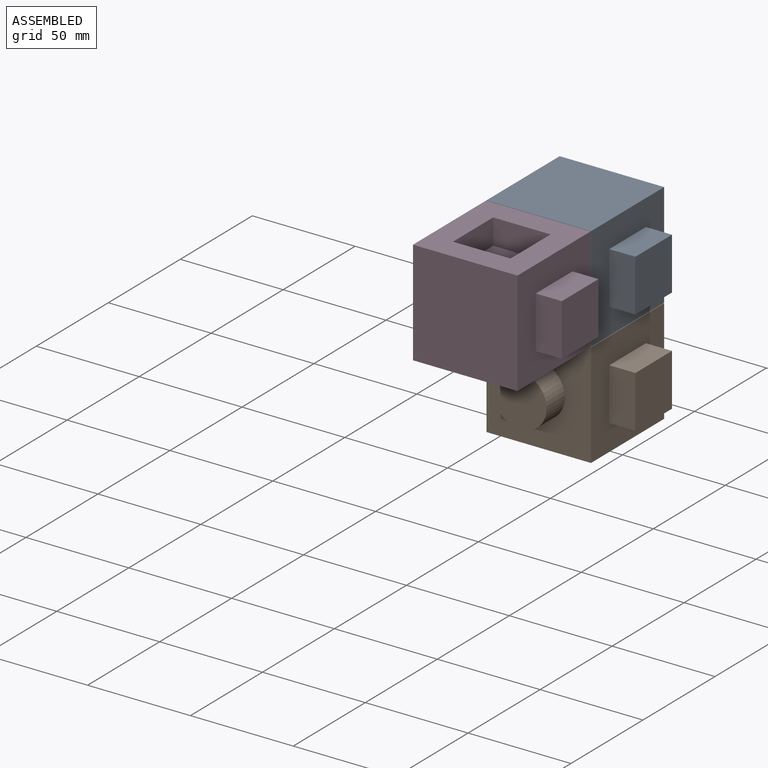
[diagram: assembled view]
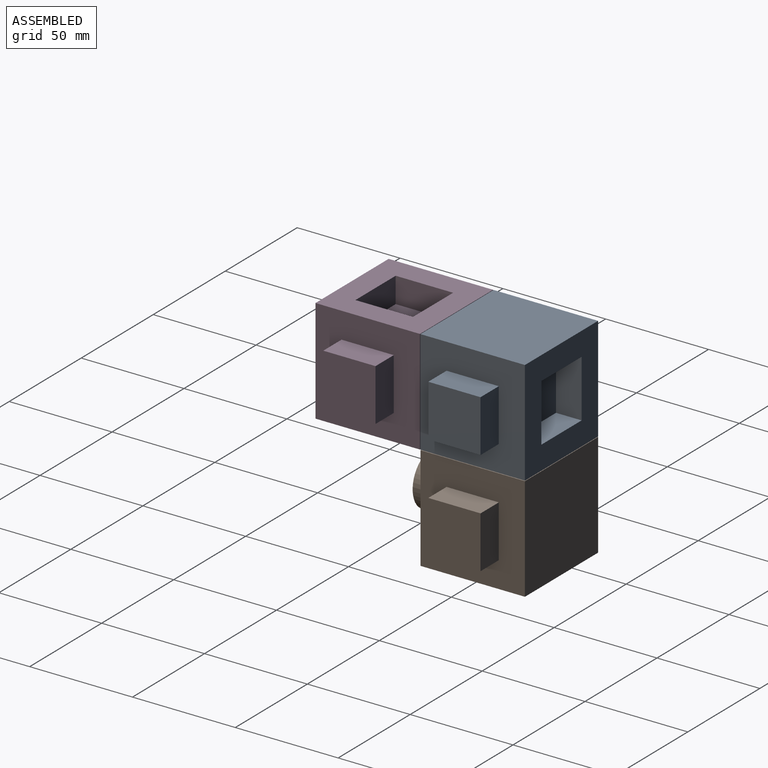
[diagram: assembled view, second angle]
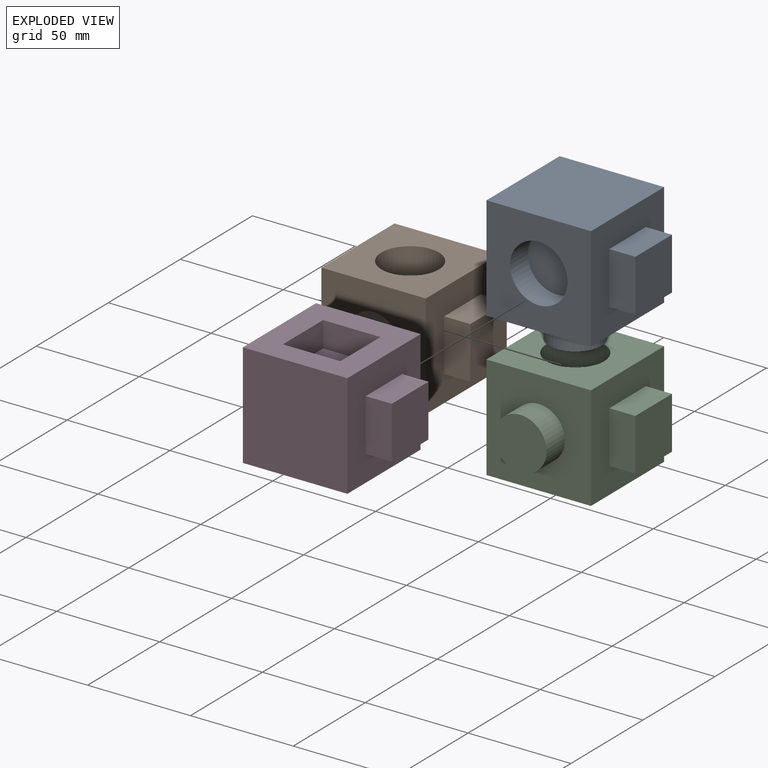
[diagram: exploded view]
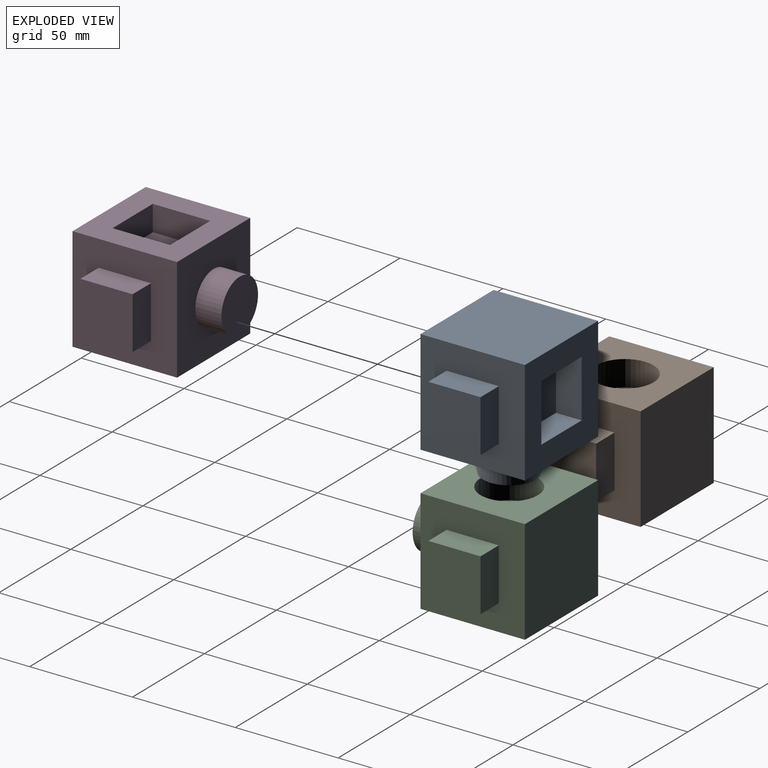
[diagram: exploded view, second angle]
ASSEMBLY  parts=4 mates=2
PART A: 20 faces, bbox 63.5x63.5x50.8 mm
  f0: plane 50.8x50.8mm, normal (0,0,-1), area 1800mm2, adj f1,f3,f4,f5,f15,f16,f17,f18
  f1: plane 50.8x50.8mm, normal (1,0,0), area 1935.5mm2, adj f0,f2,f4,f5,f10,f11,f12,f13
  f2: plane 50.8x50.8mm, normal (0,0,1), area 1967.5mm2, adj f1,f3,f4,f5,f8
  f3: plane 50.8x50.8mm, normal (-1,0,0), area 2580.6mm2, adj f0,f2,f4,f5
  f4: plane 50.8x50.8mm, normal (0,-1,0), area 2073.9mm2, adj f0,f1,f2,f3,f6
  f5: plane 50.8x50.8mm, normal (0,1,0), area 2580.6mm2, adj f0,f1,f2,f3
  f6: cylinder r=12.7mm len=25.4mm, axis (0,1,0), area 1013.4mm2, adj f4,f7
  f7: plane 25.4x25.4mm, normal (0,-1,0), area 506.7mm2, adj f6
  f8: cylinder r=13.97mm len=27.94mm, axis (0,0,1), area 1092.5mm2, adj f2,f9
  f9: plane 27.94x27.94mm, normal (0,0,1), area 613.1mm2, adj f8
  f10: plane 25.4x12.7mm, normal (0,0,1), area 322.6mm2, adj f1,f11,f13,f14
  f11: plane 25.4x12.7mm, normal (0,-1,0), area 322.6mm2, adj f1,f10,f12,f14
  f12: plane 25.4x12.7mm, normal (0,0,-1), area 322.6mm2, adj f1,f11,f13,f14
  f13: plane 25.4x12.7mm, normal (0,1,0), area 322.6mm2, adj f1,f10,f12,f14
  f14: plane 25.4x25.4mm, normal (1,0,0), area 645.2mm2, adj f10,f11,f12,f13
  f15: plane 27.94x12.45mm, normal (0,1,0), area 347.7mm2, adj f0,f16,f18,f19
  f16: plane 27.94x12.45mm, normal (1,0,0), area 347.7mm2, adj f0,f15,f17,f19
  f17: plane 27.94x12.45mm, normal (0,-1,0), area 347.7mm2, adj f0,f16,f18,f19
  f18: plane 27.94x12.45mm, normal (-1,0,0), area 347.7mm2, adj f0,f15,f17,f19
  f19: plane 27.94x27.94mm, normal (0,0,-1), area 780.6mm2, adj f15,f16,f17,f18
PART B: same geometry as A
PART C: same geometry as A
PART D: same geometry as A
PLACE A rot(axis=(1,0,0),90deg) t=(0,-18.66,83.19)mm
PLACE B at identity
PLACE C at identity
PLACE D rot(axis=(1,0,0),180deg) t=(0,-101.85,64.53)mm
MATE fastened A.f6 <-> C.f8  axis (0,0,-1) through (-5.13,-25.4,19.69)mm
MATE fastened D.f6 <-> A.f8  axis (0,1,0) through (-5.13,-38.35,57.79)mm
